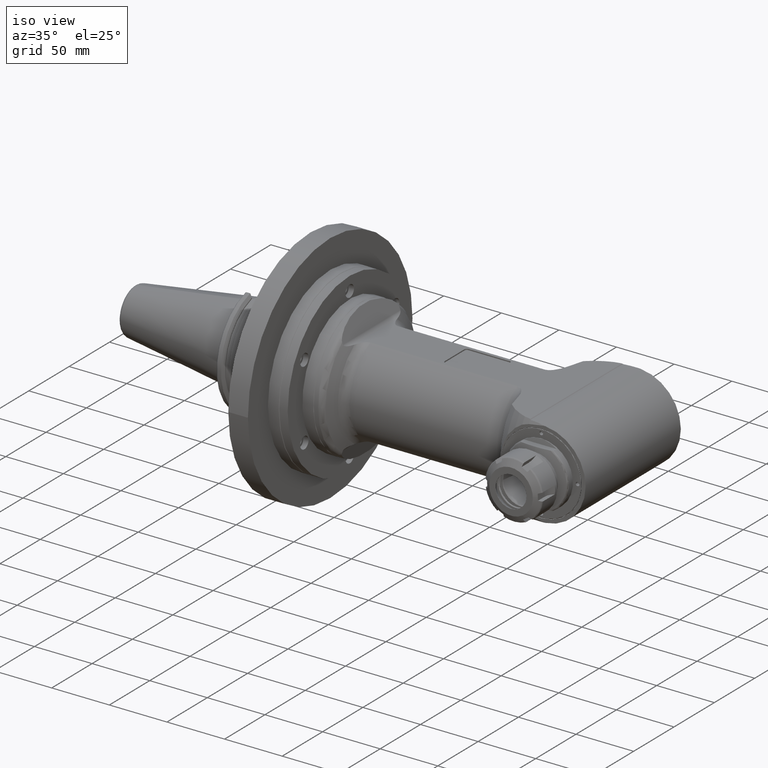
[diagram: clean part render]
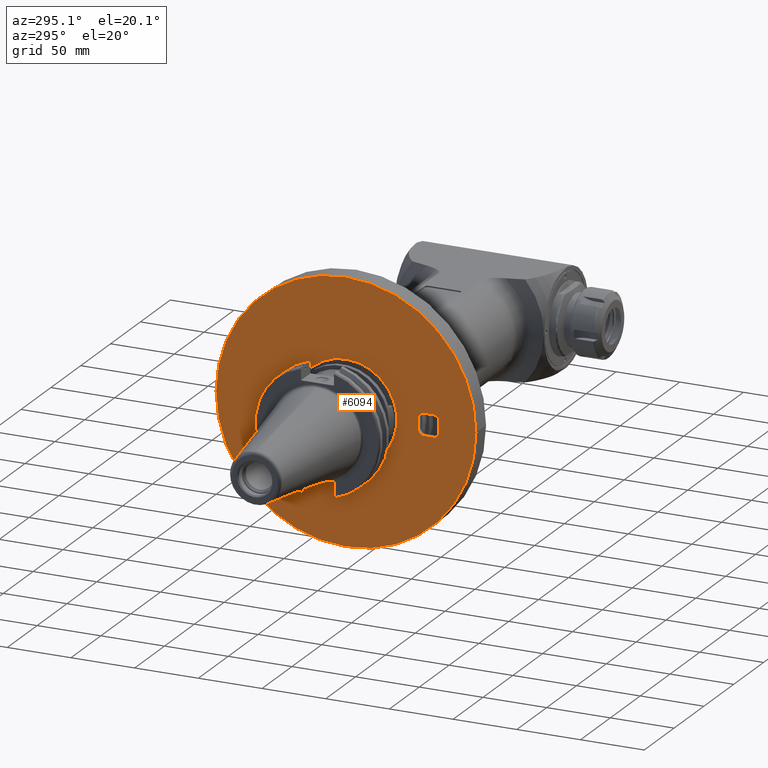
[diagram: tour spotlight — one face highlighted and labeled with its STEP entity id]
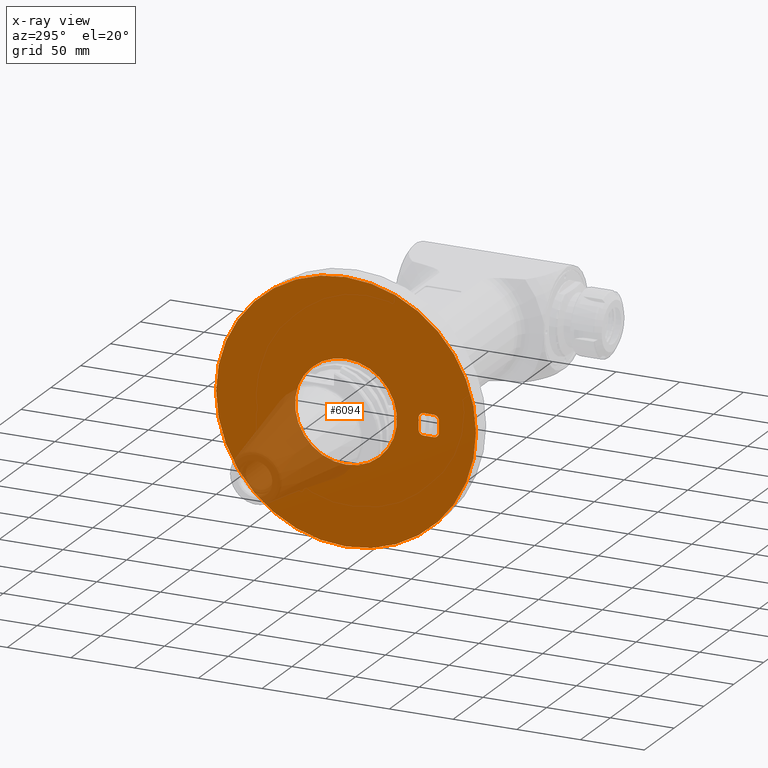
[diagram: x-ray of the same camera — body ghosted, this tour face saturated]
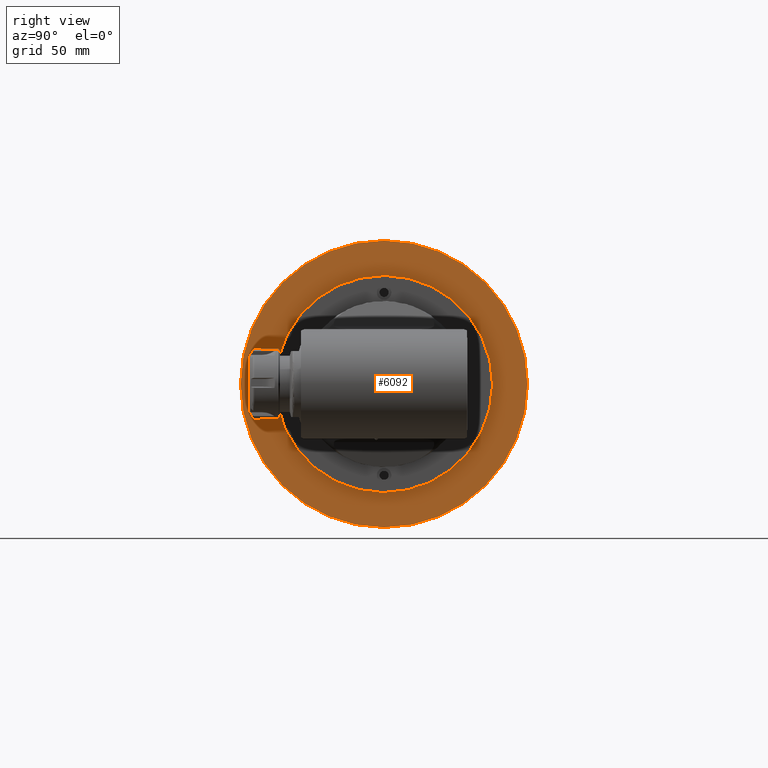
[diagram: tour spotlight — one face highlighted and labeled with its STEP entity id]
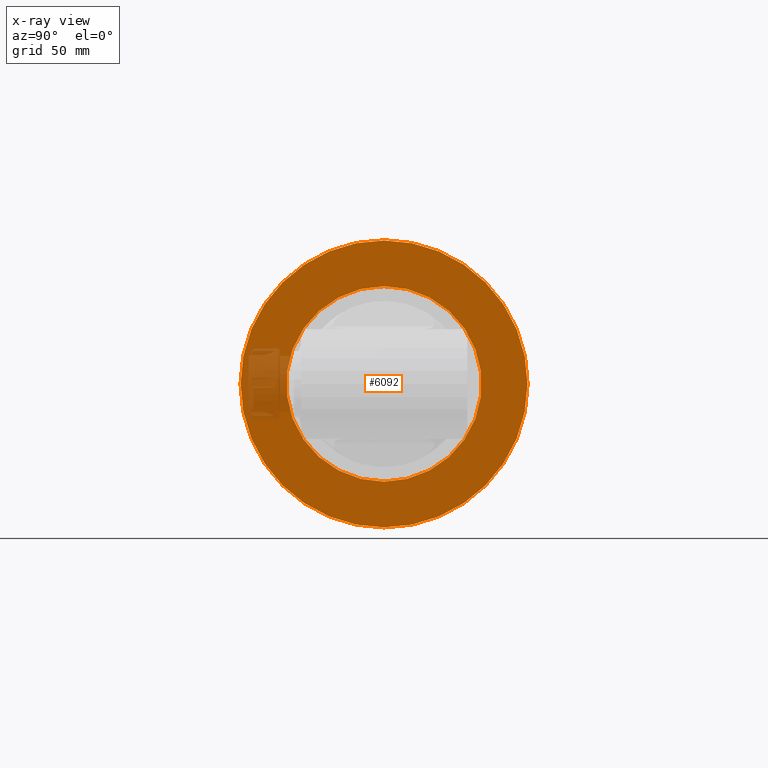
[diagram: x-ray of the same camera — body ghosted, this tour face saturated]
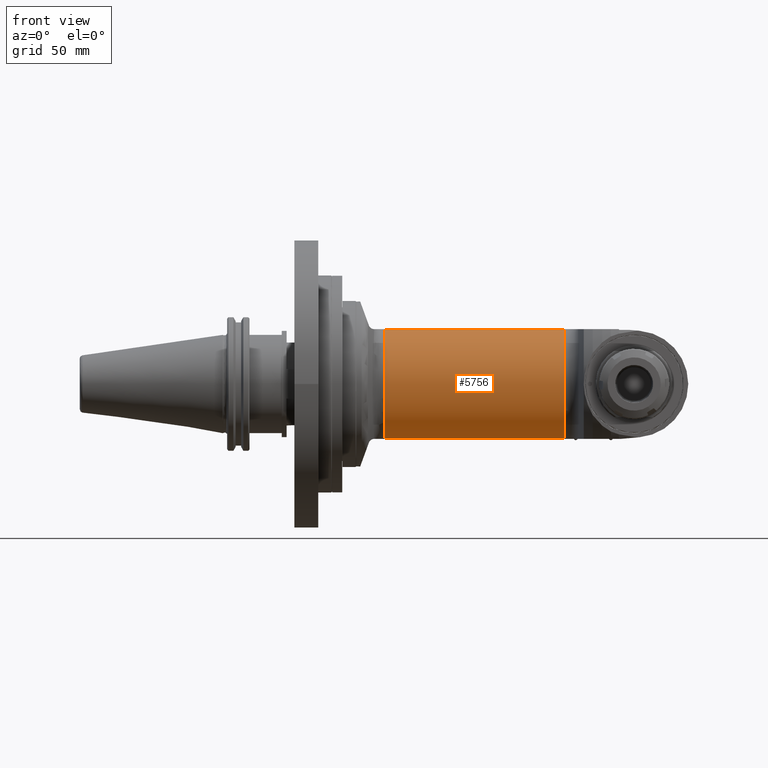
[diagram: tour spotlight — one face highlighted and labeled with its STEP entity id]
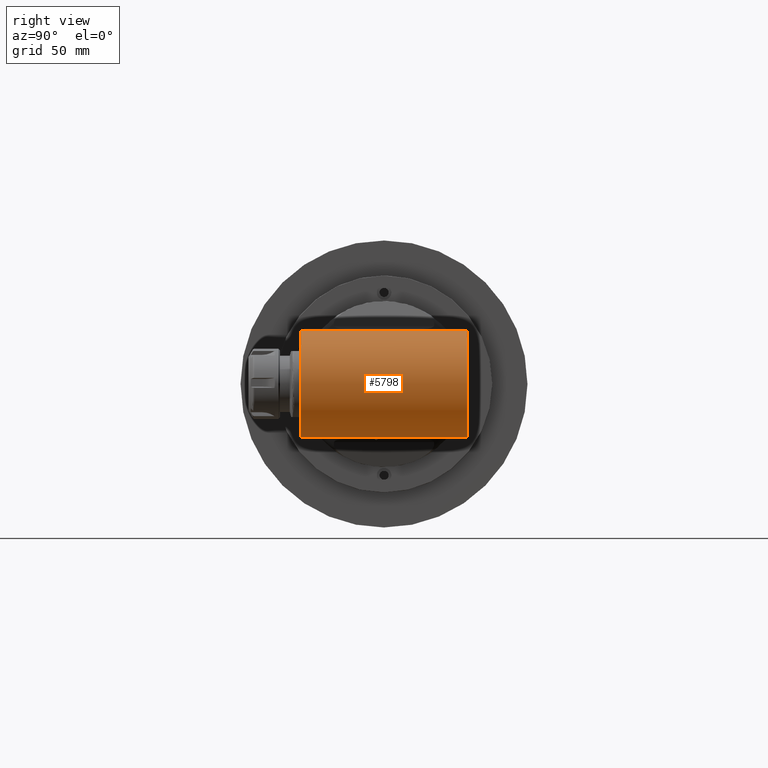
[diagram: tour spotlight — one face highlighted and labeled with its STEP entity id]
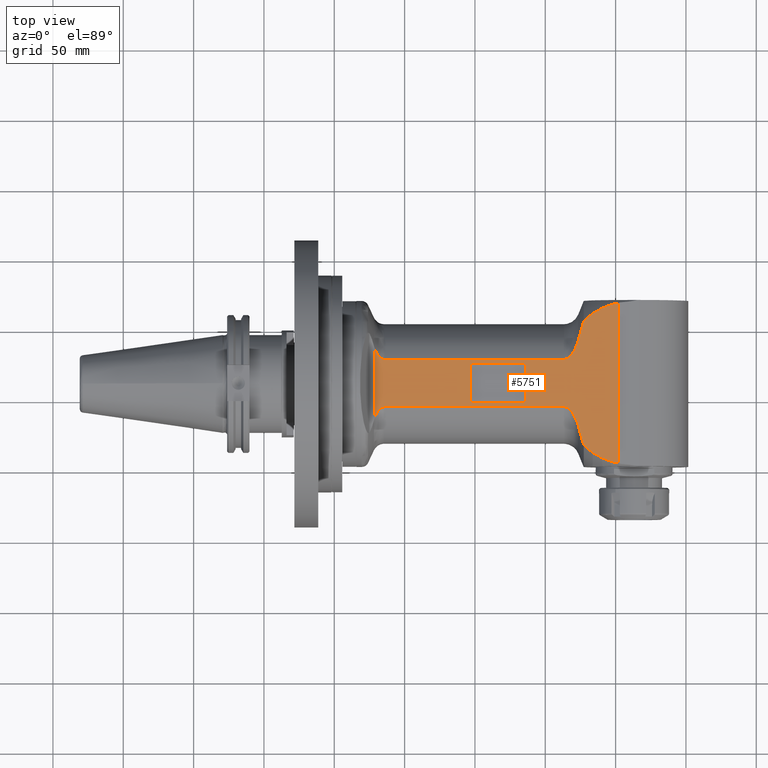
[diagram: tour spotlight — one face highlighted and labeled with its STEP entity id]
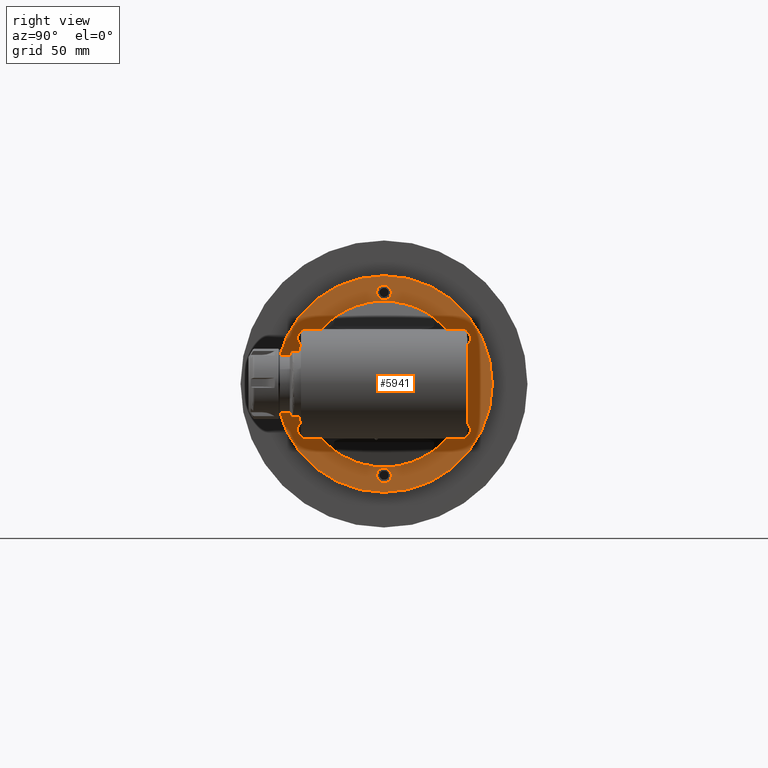
[diagram: tour spotlight — one face highlighted and labeled with its STEP entity id]
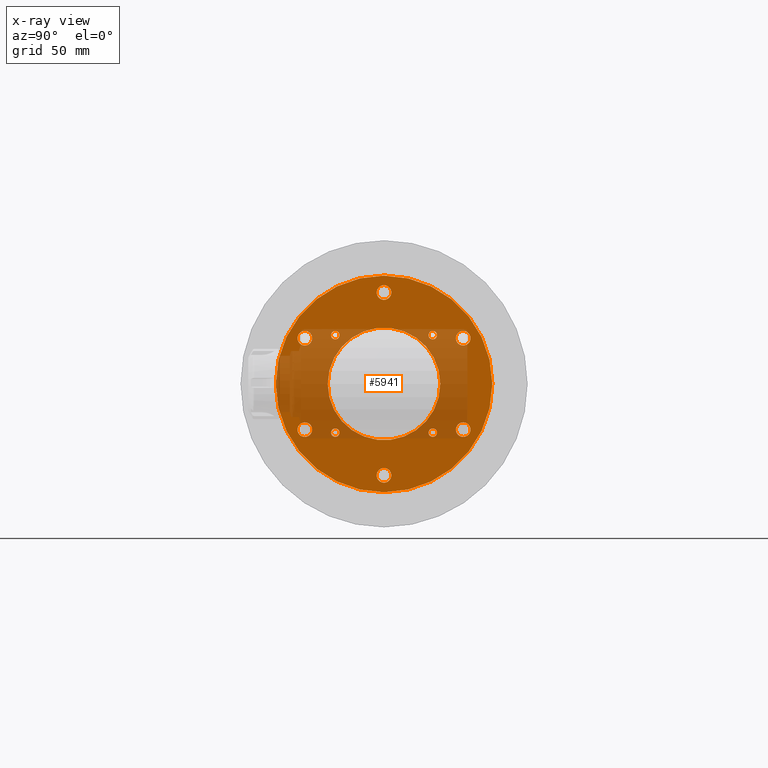
[diagram: x-ray of the same camera — body ghosted, this tour face saturated]
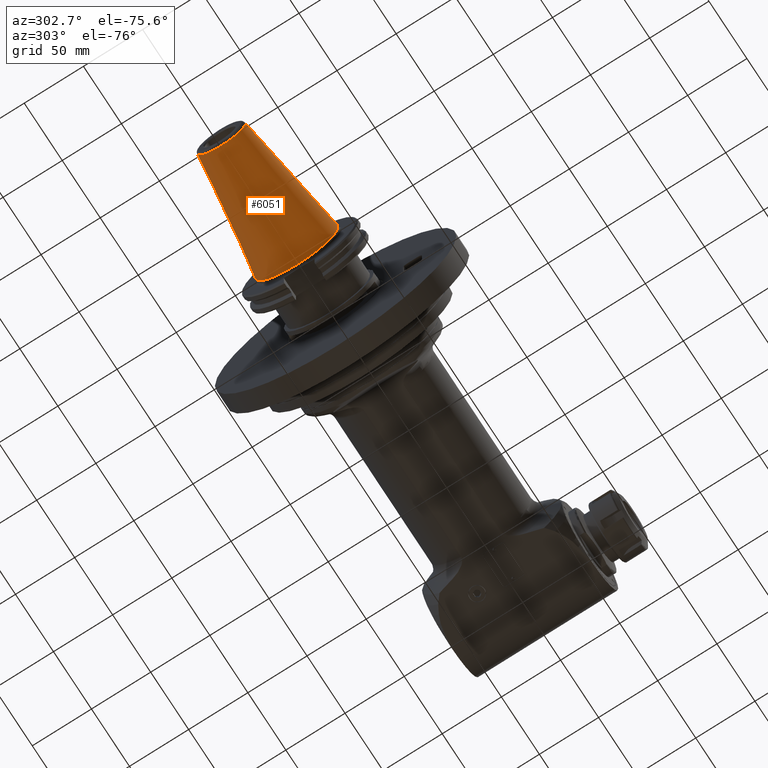
[diagram: tour spotlight — one face highlighted and labeled with its STEP entity id]
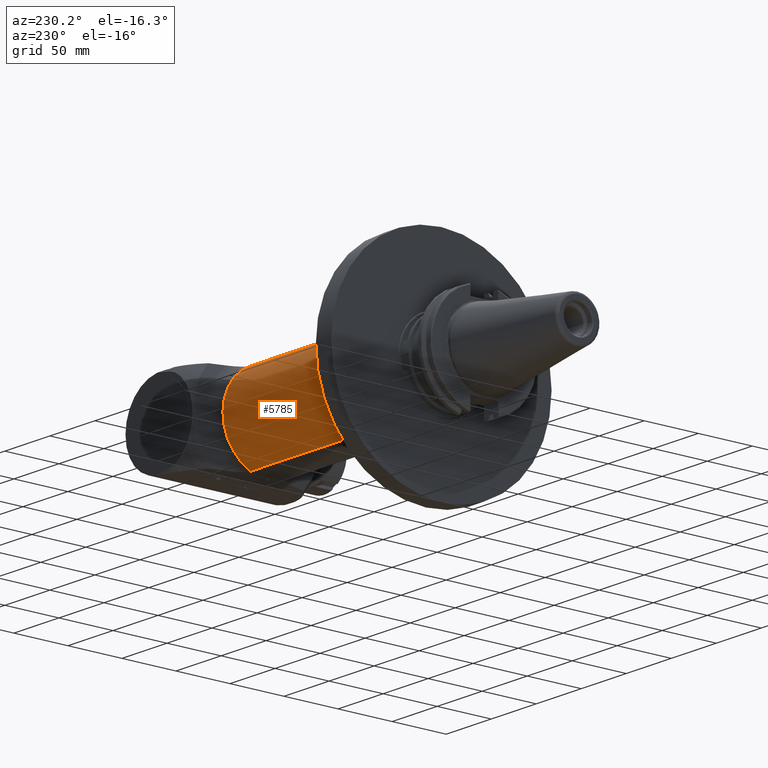
[diagram: tour spotlight — one face highlighted and labeled with its STEP entity id]
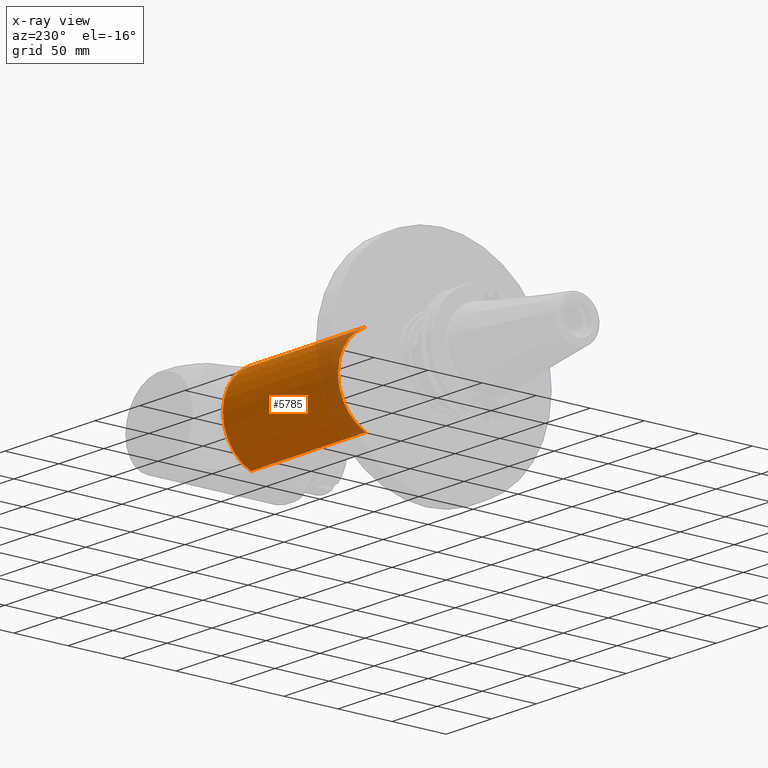
[diagram: x-ray of the same camera — body ghosted, this tour face saturated]
A machine part: a face-by-face anatomy tour. The part has 368 B-rep faces; the first image is the clean iso view, then the 8 largest visible faces are spotlighted one at a time (largest first), each with its STEP entity span.

Face 1 — auxiliary view, entity #6094. An x-ray twin of the same camera follows (body ghosted, this face saturated) — the face is partly hidden behind the body. In plain terms, the highlighted planar face has unit normal (-1, 0, 0).
Definition (entity closure, byte-faithful):
#249=FACE_BOUND('',#1273,.T.);
#250=FACE_BOUND('',#1274,.T.);
#827=FACE_OUTER_BOUND('',#1272,.T.);
#1272=EDGE_LOOP('',(#5478));
#1273=EDGE_LOOP('',(#5479,#5480,#5481,#5482,#5483,#5484,#5485,#5486));
#1274=EDGE_LOOP('',(#5487));
#1648=CIRCLE('',#6889,102.);
#1649=CIRCLE('',#6891,4.);
#1650=CIRCLE('',#6892,4.);
#1651=CIRCLE('',#6893,4.);
#1652=CIRCLE('',#6894,4.);
#1653=CIRCLE('',#6895,40.);
#1994=LINE('',#11192,#2339);
#1995=LINE('',#11196,#2340);
#1996=LINE('',#11200,#2341);
#1997=LINE('',#11204,#2342);
#2339=VECTOR('',#8668,8.);
#2340=VECTOR('',#8671,9.);
#2341=VECTOR('',#8674,8.);
#2342=VECTOR('',#8677,9.);
#2912=VERTEX_POINT('',#11186);
#2913=VERTEX_POINT('',#11190);
#2914=VERTEX_POINT('',#11191);
#2915=VERTEX_POINT('',#11193);
#2916=VERTEX_POINT('',#11195);
#2917=VERTEX_POINT('',#11197);
#2918=VERTEX_POINT('',#11199);
#2919=VERTEX_POINT('',#11201);
#2920=VERTEX_POINT('',#11203);
#2921=VERTEX_POINT('',#11206);
#3772=EDGE_CURVE('',#2912,#2912,#1648,.T.);
#3774=EDGE_CURVE('',#2913,#2914,#1994,.T.);
#3775=EDGE_CURVE('',#2913,#2915,#1649,.T.);
#3776=EDGE_CURVE('',#2916,#2915,#1995,.T.);
#3777=EDGE_CURVE('',#2916,#2917,#1650,.T.);
#3778=EDGE_CURVE('',#2918,#2917,#1996,.T.);
#3779=EDGE_CURVE('',#2918,#2919,#1651,.T.);
#3780=EDGE_CURVE('',#2920,#2919,#1997,.T.);
#3781=EDGE_CURVE('',#2920,#2914,#1652,.T.);
#3782=EDGE_CURVE('',#2921,#2921,#1653,.T.);
#5478=ORIENTED_EDGE('',*,*,#3772,.F.);
#5479=ORIENTED_EDGE('',*,*,#3774,.F.);
#5480=ORIENTED_EDGE('',*,*,#3775,.T.);
#5481=ORIENTED_EDGE('',*,*,#3776,.F.);
#5482=ORIENTED_EDGE('',*,*,#3777,.T.);
#5483=ORIENTED_EDGE('',*,*,#3778,.F.);
#5484=ORIENTED_EDGE('',*,*,#3779,.T.);
#5485=ORIENTED_EDGE('',*,*,#3780,.F.);
#5486=ORIENTED_EDGE('',*,*,#3781,.T.);
#5487=ORIENTED_EDGE('',*,*,#3782,.T.);
#5735=PLANE('',#6890);
#6094=ADVANCED_FACE('',(#827,#249,#250),#5735,.T.);
#6889=AXIS2_PLACEMENT_3D('',#11187,#8663,#8664);
#6890=AXIS2_PLACEMENT_3D('',#11189,#8666,#8667);
#6891=AXIS2_PLACEMENT_3D('',#11194,#8669,#8670);
#6892=AXIS2_PLACEMENT_3D('',#11198,#8672,#8673);
#6893=AXIS2_PLACEMENT_3D('',#11202,#8675,#8676);
#6894=AXIS2_PLACEMENT_3D('',#11205,#8678,#8679);
#6895=AXIS2_PLACEMENT_3D('',#11207,#8680,#8681);
#8663=DIRECTION('center_axis',(1.,0.,0.));
#8664=DIRECTION('ref_axis',(0.,1.,0.));
#8666=DIRECTION('center_axis',(-1.,0.,0.));
#8667=DIRECTION('ref_axis',(0.,0.,1.));
#8668=DIRECTION('',(0.,1.,0.));
#8669=DIRECTION('center_axis',(1.,0.,0.));
#8670=DIRECTION('ref_axis',(0.,0.,1.));
#8671=DIRECTION('',(0.,0.,1.));
#8672=DIRECTION('center_axis',(1.,0.,0.));
#8673=DIRECTION('ref_axis',(0.,-1.,0.));
#8674=DIRECTION('',(0.,-1.,0.));
#8675=DIRECTION('center_axis',(1.,0.,0.));
#8676=DIRECTION('ref_axis',(0.,0.,-1.));
#8677=DIRECTION('',(0.,0.,-1.));
#8678=DIRECTION('center_axis',(1.,0.,0.));
#8679=DIRECTION('ref_axis',(0.,1.,0.));
#8680=DIRECTION('center_axis',(1.,0.,0.));
#8681=DIRECTION('ref_axis',(0.,0.,1.));
#11186=CARTESIAN_POINT('',(14.,-102.,-1.50990331349E-14));
#11187=CARTESIAN_POINT('Origin',(14.,0.,0.));
#11189=CARTESIAN_POINT('Origin',(14.,43.625,0.));
#11190=CARTESIAN_POINT('',(14.,-69.,8.5));
#11191=CARTESIAN_POINT('',(14.,-61.,8.5));
#11192=CARTESIAN_POINT('',(14.,-69.,8.5));
#11193=CARTESIAN_POINT('',(14.,-73.,4.5));
#11194=CARTESIAN_POINT('Origin',(14.,-69.,4.5));
#11195=CARTESIAN_POINT('',(14.,-73.,-4.5));
#11196=CARTESIAN_POINT('',(14.,-73.,-4.5));
#11197=CARTESIAN_POINT('',(14.,-69.,-8.5));
#11198=CARTESIAN_POINT('Origin',(14.,-69.,-4.5));
#11199=CARTESIAN_POINT('',(14.,-61.,-8.5));
#11200=CARTESIAN_POINT('',(14.,-61.,-8.5));
#11201=CARTESIAN_POINT('',(14.,-57.,-4.5));
#11202=CARTESIAN_POINT('Origin',(14.,-61.,-4.5));
#11203=CARTESIAN_POINT('',(14.,-57.,4.5));
#11204=CARTESIAN_POINT('',(14.,-57.,4.5));
#11205=CARTESIAN_POINT('Origin',(14.,-61.,4.5));
#11206=CARTESIAN_POINT('',(14.,0.,-40.));
#11207=CARTESIAN_POINT('Origin',(14.,0.,0.));

Face 2 — right view, entity #6092. An x-ray twin of the same camera follows (body ghosted, this face saturated) — the face is partly hidden behind the body. In plain terms, the highlighted planar face has unit normal (-1, 0, 0).
Definition (entity closure, byte-faithful):
#248=FACE_BOUND('',#1270,.T.);
#825=FACE_OUTER_BOUND('',#1269,.T.);
#1269=EDGE_LOOP('',(#5472));
#1270=EDGE_LOOP('',(#5473));
#1646=CIRCLE('',#6886,102.);
#1647=CIRCLE('',#6887,69.5);
#2910=VERTEX_POINT('',#11181);
#2911=VERTEX_POINT('',#11183);
#3770=EDGE_CURVE('',#2910,#2910,#1646,.T.);
#3771=EDGE_CURVE('',#2911,#2911,#1647,.T.);
#5472=ORIENTED_EDGE('',*,*,#3770,.T.);
#5473=ORIENTED_EDGE('',*,*,#3771,.T.);
#5734=PLANE('',#6885);
#6092=ADVANCED_FACE('',(#825,#248),#5734,.F.);
#6885=AXIS2_PLACEMENT_3D('',#11180,#8655,#8656);
#6886=AXIS2_PLACEMENT_3D('',#11182,#8657,#8658);
#6887=AXIS2_PLACEMENT_3D('',#11184,#8659,#8660);
#8655=DIRECTION('center_axis',(-1.,0.,0.));
#8656=DIRECTION('ref_axis',(0.,0.,1.));
#8657=DIRECTION('center_axis',(1.,0.,0.));
#8658=DIRECTION('ref_axis',(0.,1.,0.));
#8659=DIRECTION('center_axis',(-1.,0.,0.));
#8660=DIRECTION('ref_axis',(0.,0.,-1.));
#11180=CARTESIAN_POINT('Origin',(31.,43.625,0.));
#11181=CARTESIAN_POINT('',(31.,-102.,-1.50990331349E-14));
#11182=CARTESIAN_POINT('Origin',(31.,0.,0.));
#11183=CARTESIAN_POINT('',(31.,-8.51129525407411E-15,-69.5));
#11184=CARTESIAN_POINT('Origin',(31.,0.,0.));

Face 3 — front view, entity #5756. In plain terms, the highlighted cylindrical surface (partial cylindrical patch) has radius 42.5 mm, axis along (-1, 0, 0).
Definition (entity closure, byte-faithful):
#67=CYLINDRICAL_SURFACE('',#6215,42.5);
#489=FACE_OUTER_BOUND('',#858,.T.);
#858=EDGE_LOOP('',(#3900,#3901,#3902,#3903));
#1329=CIRCLE('',#6214,42.5);
#1330=CIRCLE('',#6216,42.5);
#1681=LINE('',#8866,#2026);
#1688=LINE('',#9101,#2033);
#2026=VECTOR('',#6973,127.7897678687);
#2033=VECTOR('',#7012,127.7897678687);
#2381=VERTEX_POINT('',#8852);
#2382=VERTEX_POINT('',#8865);
#2414=VERTEX_POINT('',#9085);
#2415=VERTEX_POINT('',#9100);
#2967=EDGE_CURVE('',#2382,#2381,#1681,.T.);
#3005=EDGE_CURVE('',#2414,#2381,#1329,.T.);
#3006=EDGE_CURVE('',#2414,#2415,#1688,.T.);
#3007=EDGE_CURVE('',#2382,#2415,#1330,.T.);
#3900=ORIENTED_EDGE('',*,*,#3006,.T.);
#3901=ORIENTED_EDGE('',*,*,#3007,.F.);
#3902=ORIENTED_EDGE('',*,*,#2967,.T.);
#3903=ORIENTED_EDGE('',*,*,#3005,.F.);
#5756=ADVANCED_FACE('',(#489),#67,.T.);
#6214=AXIS2_PLACEMENT_3D('',#9098,#7008,#7009);
#6215=AXIS2_PLACEMENT_3D('',#9099,#7010,#7011);
#6216=AXIS2_PLACEMENT_3D('',#9102,#7013,#7014);
#6973=DIRECTION('',(-1.,0.,0.));
#7008=DIRECTION('center_axis',(-1.,0.,0.));
#7009=DIRECTION('ref_axis',(0.,-0.397396370683616,-0.917647058823538));
#7010=DIRECTION('center_axis',(-1.,0.,0.));
#7011=DIRECTION('ref_axis',(0.,-1.,3.21624529935327E-16));
#7012=DIRECTION('',(1.,0.,0.));
#7013=DIRECTION('center_axis',(1.,0.,0.));
#7014=DIRECTION('ref_axis',(0.,-1.,0.));
#8852=CARTESIAN_POINT('',(-177.709361554,-16.88934575405,39.));
#8865=CARTESIAN_POINT('',(-49.91959368527,-16.88934575405,39.));
#8866=CARTESIAN_POINT('',(-49.91959368527,-16.88934575405,39.));
#9085=CARTESIAN_POINT('',(-177.709361554,-16.88934575405,-39.));
#9098=CARTESIAN_POINT('Origin',(-177.709361554,0.,0.));
#9099=CARTESIAN_POINT('Origin',(-67.,0.,0.));
#9100=CARTESIAN_POINT('',(-49.91959368527,-16.88934575405,-39.));
#9101=CARTESIAN_POINT('',(-177.709361554,-16.88934575405,-39.));
#9102=CARTESIAN_POINT('Origin',(-49.91959368527,0.,0.));

Face 4 — right view, entity #5798. In plain terms, the highlighted cylindrical surface (partial cylindrical patch) has radius 38 mm, axis along (0, 1, 0).
Definition (entity closure, byte-faithful):
#76=CYLINDRICAL_SURFACE('',#6308,38.);
#531=FACE_OUTER_BOUND('',#907,.T.);
#907=EDGE_LOOP('',(#4128,#4129,#4130,#4131));
#1373=CIRCLE('',#6293,38.);
#1380=CIRCLE('',#6309,38.);
#1678=LINE('',#8826,#2023);
#1719=LINE('',#9463,#2064);
#2023=VECTOR('',#6960,118.);
#2064=VECTOR('',#7227,118.);
#2373=VERTEX_POINT('',#8823);
#2374=VERTEX_POINT('',#8825);
#2481=VERTEX_POINT('',#9418);
#2488=VERTEX_POINT('',#9462);
#2957=EDGE_CURVE('',#2374,#2373,#1678,.T.);
#3101=EDGE_CURVE('',#2374,#2481,#1373,.T.);
#3116=EDGE_CURVE('',#2488,#2481,#1719,.T.);
#3119=EDGE_CURVE('',#2373,#2488,#1380,.T.);
#4128=ORIENTED_EDGE('',*,*,#2957,.T.);
#4129=ORIENTED_EDGE('',*,*,#3119,.T.);
#4130=ORIENTED_EDGE('',*,*,#3116,.T.);
#4131=ORIENTED_EDGE('',*,*,#3101,.F.);
#5798=ADVANCED_FACE('',(#531),#76,.T.);
#6293=AXIS2_PLACEMENT_3D('',#9419,#7196,#7197);
#6308=AXIS2_PLACEMENT_3D('',#9469,#7229,#7230);
#6309=AXIS2_PLACEMENT_3D('',#9470,#7231,#7232);
#6960=DIRECTION('',(0.,-1.,0.));
#7196=DIRECTION('center_axis',(0.,1.,0.));
#7197=DIRECTION('ref_axis',(0.0871557427475461,0.,0.996194698091755));
#7227=DIRECTION('',(0.,1.,0.));
#7229=DIRECTION('center_axis',(0.,1.,0.));
#7230=DIRECTION('ref_axis',(1.,0.,1.22464679914735E-16));
#7231=DIRECTION('center_axis',(0.,1.,0.));
#7232=DIRECTION('ref_axis',(0.0871557427475461,0.,0.996194698091755));
#8823=CARTESIAN_POINT('',(3.81191822441,-59.,37.85539852749));
#8825=CARTESIAN_POINT('',(3.81191822441,59.,37.85539852749));
#8826=CARTESIAN_POINT('',(3.81191822441,59.,37.85539852749));
#9418=CARTESIAN_POINT('',(3.81191822441,59.,-37.85539852749));
#9419=CARTESIAN_POINT('Origin',(0.5,59.,0.));
#9462=CARTESIAN_POINT('',(3.81191822441,-59.,-37.85539852749));
#9463=CARTESIAN_POINT('',(3.81191822441,-59.,-37.85539852749));
#9469=CARTESIAN_POINT('Origin',(0.5,-70.8000024,0.));
#9470=CARTESIAN_POINT('Origin',(0.5,-59.,0.));

Face 5 — top view, entity #5751. In plain terms, the highlighted planar face has unit normal (-0, 0, -1).
Definition (entity closure, byte-faithful):
#172=FACE_BOUND('',#853,.T.);
#327=(
BOUNDED_CURVE()
B_SPLINE_CURVE(2,(#8845,#8846,#8847),.UNSPECIFIED.,.F.,.F.)
B_SPLINE_CURVE_WITH_KNOTS((3,3),(-0.258199240240216,-0.0435592406300408),
 .UNSPECIFIED.)
CURVE()
GEOMETRIC_REPRESENTATION_ITEM()
RATIONAL_B_SPLINE_CURVE((1.01099371026194,1.00645712863115,1.00186579429145))
REPRESENTATION_ITEM('')
);
#328=(
BOUNDED_CURVE()
B_SPLINE_CURVE(2,(#8885,#8886,#8887),.UNSPECIFIED.,.F.,.F.)
B_SPLINE_CURVE_WITH_KNOTS((3,3),(4.52334173128765,6.36262635387725),
 .UNSPECIFIED.)
CURVE()
GEOMETRIC_REPRESENTATION_ITEM()
RATIONAL_B_SPLINE_CURVE((1.65245227205287,1.75473892938806,1.83233259822002))
REPRESENTATION_ITEM('')
);
#329=(
BOUNDED_CURVE()
B_SPLINE_CURVE(2,(#8889,#8890,#8891),.UNSPECIFIED.,.F.,.F.)
B_SPLINE_CURVE_WITH_KNOTS((3,3),(1.19258144572329,1.70434645855754),
 .UNSPECIFIED.)
CURVE()
GEOMETRIC_REPRESENTATION_ITEM()
RATIONAL_B_SPLINE_CURVE((1.11904514146271,1.14269499670088,1.16472045288357))
REPRESENTATION_ITEM('')
);
#330=(
BOUNDED_CURVE()
B_SPLINE_CURVE(2,(#8893,#8894,#8895),.UNSPECIFIED.,.F.,.F.)
B_SPLINE_CURVE_WITH_KNOTS((3,3),(0.63059718713052,1.01499441382721),
 .UNSPECIFIED.)
CURVE()
GEOMETRIC_REPRESENTATION_ITEM()
RATIONAL_B_SPLINE_CURVE((1.05382653180411,1.06966795019405,1.08482142972976))
REPRESENTATION_ITEM('')
);
#331=(
BOUNDED_CURVE()
B_SPLINE_CURVE(2,(#8897,#8898,#8899),.UNSPECIFIED.,.F.,.F.)
B_SPLINE_CURVE_WITH_KNOTS((3,3),(0.28253037946221,0.566196133802406),
 .UNSPECIFIED.)
CURVE()
GEOMETRIC_REPRESENTATION_ITEM()
RATIONAL_B_SPLINE_CURVE((1.01985578725328,1.02969639383012,1.03928161176508))
REPRESENTATION_ITEM('')
);
#332=(
BOUNDED_CURVE()
B_SPLINE_CURVE(2,(#8900,#8901,#8902),.UNSPECIFIED.,.F.,.F.)
B_SPLINE_CURVE_WITH_KNOTS((3,3),(0.0435592406297658,0.258199240239935),
 .UNSPECIFIED.)
CURVE()
GEOMETRIC_REPRESENTATION_ITEM()
RATIONAL_B_SPLINE_CURVE((1.00186579429144,1.00645712863114,1.01099371026193))
REPRESENTATION_ITEM('')
);
#333=(
BOUNDED_CURVE()
B_SPLINE_CURVE(2,(#8904,#8905,#8906),.UNSPECIFIED.,.F.,.F.)
B_SPLINE_CURVE_WITH_KNOTS((3,3),(21.8579215953965,22.1415747401255),
 .UNSPECIFIED.)
CURVE()
GEOMETRIC_REPRESENTATION_ITEM()
RATIONAL_B_SPLINE_CURVE((1.03925749298676,1.02967249770123,1.01983211971193))
REPRESENTATION_ITEM('')
);
#334=(
BOUNDED_CURVE()
B_SPLINE_CURVE(2,(#8908,#8909,#8910),.UNSPECIFIED.,.F.,.F.)
B_SPLINE_CURVE_WITH_KNOTS((3,3),(17.9481893848663,18.3325659471558),
 .UNSPECIFIED.)
CURVE()
GEOMETRIC_REPRESENTATION_ITEM()
RATIONAL_B_SPLINE_CURVE((1.08478740898246,1.06963440453131,1.05379348278755))
REPRESENTATION_ITEM('')
);
#335=(
BOUNDED_CURVE()
B_SPLINE_CURVE(2,(#8912,#8913,#8914),.UNSPECIFIED.,.F.,.F.)
B_SPLINE_CURVE_WITH_KNOTS((3,3),(15.5811505124909,16.0928831327769),
 .UNSPECIFIED.)
CURVE()
GEOMETRIC_REPRESENTATION_ITEM()
RATIONAL_B_SPLINE_CURVE((1.16467075614164,1.14264623994714,1.11899739403981))
REPRESENTATION_ITEM('')
);
#336=(
BOUNDED_CURVE()
B_SPLINE_CURVE(2,(#8916,#8917,#8918),.UNSPECIFIED.,.F.,.F.)
B_SPLINE_CURVE_WITH_KNOTS((3,3),(17.9190428891443,19.7581004738918),
 .UNSPECIFIED.)
CURVE()
GEOMETRIC_REPRESENTATION_ITEM()
RATIONAL_B_SPLINE_CURVE((1.83211432489703,1.75452989905454,1.65225542608023))
REPRESENTATION_ITEM('')
);
#433=B_SPLINE_CURVE_WITH_KNOTS('',3,(#8853,#8854,#8855,#8856,#8857,#8858,
#8859,#8860,#8861,#8862,#8863,#8864),.UNSPECIFIED.,.F.,.F.,(4,2,2,2,2,4),
(-3.19539997434443,-3.09159271726834,-2.96658047424726,-2.57690997577764,
-2.30235248652145,-2.07011355459297),.UNSPECIFIED.);
#434=B_SPLINE_CURVE_WITH_KNOTS('',3,(#8868,#8869,#8870,#8871,#8872,#8873,
#8874,#8875,#8876,#8877,#8878,#8879,#8880,#8881,#8882,#8883),
 .UNSPECIFIED.,.F.,.F.,(4,2,2,2,2,2,2,4),(4.20455674250215,4.34860436740711,
4.52309530297573,4.79155120042495,5.06000709787417,5.41995109479012,5.77989509170607,
5.8845077730285),.UNSPECIFIED.);
#435=B_SPLINE_CURVE_WITH_KNOTS('',3,(#8920,#8921,#8922,#8923,#8924,#8925,
#8926,#8927,#8928,#8929,#8930,#8931,#8932,#8933,#8934,#8935),
 .UNSPECIFIED.,.F.,.F.,(4,2,2,2,2,2,2,4),(2.52460571195915,2.62921839329822,
2.98916239021418,3.34910638713013,3.61756228457935,3.88601818202857,4.06050911759719,
4.20455674250215),.UNSPECIFIED.);
#436=B_SPLINE_CURVE_WITH_KNOTS('',3,(#8938,#8939,#8940,#8941,#8942,#8943,
#8944,#8945,#8946,#8947,#8948,#8949),.UNSPECIFIED.,.F.,.F.,(4,2,2,2,2,4),
(3.19539997434443,3.29920723142052,3.4242194744416,3.81388997291122,4.08844746216741,
4.32068480259709),.UNSPECIFIED.);
#484=FACE_OUTER_BOUND('',#852,.T.);
#852=EDGE_LOOP('',(#3850,#3851,#3852,#3853,#3854,#3855,#3856,#3857,#3858,
#3859,#3860,#3861,#3862,#3863,#3864,#3865,#3866,#3867));
#853=EDGE_LOOP('',(#3868,#3869,#3870,#3871,#3872,#3873,#3874,#3875));
#1320=CIRCLE('',#6200,2.);
#1321=CIRCLE('',#6201,2.);
#1322=CIRCLE('',#6202,2.);
#1323=CIRCLE('',#6203,2.);
#1675=LINE('',#8798,#2020);
#1680=LINE('',#8851,#2025);
#1681=LINE('',#8866,#2026);
#1682=LINE('',#8937,#2027);
#1683=LINE('',#8954,#2028);
#1684=LINE('',#8958,#2029);
#1685=LINE('',#8962,#2030);
#1686=LINE('',#8965,#2031);
#2020=VECTOR('',#6949,10.);
#2025=VECTOR('',#6972,51.5068622198801);
#2026=VECTOR('',#6973,127.7897678687);
#2027=VECTOR('',#6974,127.7897678687);
#2028=VECTOR('',#6977,24.5);
#2029=VECTOR('',#6980,35.5);
#2030=VECTOR('',#6983,24.5);
#2031=VECTOR('',#6986,35.5);
#2367=VERTEX_POINT('',#8795);
#2368=VERTEX_POINT('',#8797);
#2378=VERTEX_POINT('',#8843);
#2379=VERTEX_POINT('',#8849);
#2380=VERTEX_POINT('',#8850);
#2381=VERTEX_POINT('',#8852);
#2382=VERTEX_POINT('',#8865);
#2383=VERTEX_POINT('',#8867);
#2384=VERTEX_POINT('',#8884);
#2385=VERTEX_POINT('',#8888);
#2386=VERTEX_POINT('',#8892);
#2387=VERTEX_POINT('',#8896);
#2388=VERTEX_POINT('',#8903);
#2389=VERTEX_POINT('',#8907);
#2390=VERTEX_POINT('',#8911);
#2391=VERTEX_POINT('',#8915);
#2392=VERTEX_POINT('',#8919);
#2393=VERTEX_POINT('',#8936);
#2394=VERTEX_POINT('',#8950);
#2395=VERTEX_POINT('',#8951);
#2396=VERTEX_POINT('',#8953);
#2397=VERTEX_POINT('',#8955);
#2398=VERTEX_POINT('',#8957);
#2399=VERTEX_POINT('',#8959);
#2400=VERTEX_POINT('',#8961);
#2401=VERTEX_POINT('',#8963);
#2949=EDGE_CURVE('',#2368,#2367,#1675,.T.);
#2964=EDGE_CURVE('',#2378,#2367,#327,.T.);
#2965=EDGE_CURVE('',#2379,#2380,#1680,.T.);
#2966=EDGE_CURVE('',#2381,#2379,#433,.T.);
#2967=EDGE_CURVE('',#2382,#2381,#1681,.T.);
#2968=EDGE_CURVE('',#2382,#2383,#434,.T.);
#2969=EDGE_CURVE('',#2384,#2383,#328,.T.);
#2970=EDGE_CURVE('',#2385,#2384,#329,.T.);
#2971=EDGE_CURVE('',#2386,#2385,#330,.T.);
#2972=EDGE_CURVE('',#2387,#2386,#331,.T.);
#2973=EDGE_CURVE('',#2368,#2387,#332,.T.);
#2974=EDGE_CURVE('',#2388,#2378,#333,.T.);
#2975=EDGE_CURVE('',#2389,#2388,#334,.T.);
#2976=EDGE_CURVE('',#2390,#2389,#335,.T.);
#2977=EDGE_CURVE('',#2391,#2390,#336,.T.);
#2978=EDGE_CURVE('',#2391,#2392,#435,.T.);
#2979=EDGE_CURVE('',#2393,#2392,#1682,.T.);
#2980=EDGE_CURVE('',#2393,#2380,#436,.T.);
#2981=EDGE_CURVE('',#2394,#2395,#1320,.T.);
#2982=EDGE_CURVE('',#2395,#2396,#1683,.T.);
#2983=EDGE_CURVE('',#2396,#2397,#1321,.T.);
#2984=EDGE_CURVE('',#2397,#2398,#1684,.T.);
#2985=EDGE_CURVE('',#2398,#2399,#1322,.T.);
#2986=EDGE_CURVE('',#2399,#2400,#1685,.T.);
#2987=EDGE_CURVE('',#2400,#2401,#1323,.T.);
#2988=EDGE_CURVE('',#2401,#2394,#1686,.T.);
#3850=ORIENTED_EDGE('',*,*,#2965,.F.);
#3851=ORIENTED_EDGE('',*,*,#2966,.F.);
#3852=ORIENTED_EDGE('',*,*,#2967,.F.);
#3853=ORIENTED_EDGE('',*,*,#2968,.T.);
#3854=ORIENTED_EDGE('',*,*,#2969,.F.);
#3855=ORIENTED_EDGE('',*,*,#2970,.F.);
#3856=ORIENTED_EDGE('',*,*,#2971,.F.);
#3857=ORIENTED_EDGE('',*,*,#2972,.F.);
#3858=ORIENTED_EDGE('',*,*,#2973,.F.);
#3859=ORIENTED_EDGE('',*,*,#2949,.T.);
#3860=ORIENTED_EDGE('',*,*,#2964,.F.);
#3861=ORIENTED_EDGE('',*,*,#2974,.F.);
#3862=ORIENTED_EDGE('',*,*,#2975,.F.);
#3863=ORIENTED_EDGE('',*,*,#2976,.F.);
#3864=ORIENTED_EDGE('',*,*,#2977,.F.);
#3865=ORIENTED_EDGE('',*,*,#2978,.T.);
#3866=ORIENTED_EDGE('',*,*,#2979,.F.);
#3867=ORIENTED_EDGE('',*,*,#2980,.T.);
#3868=ORIENTED_EDGE('',*,*,#2981,.T.);
#3869=ORIENTED_EDGE('',*,*,#2982,.T.);
#3870=ORIENTED_EDGE('',*,*,#2983,.T.);
#3871=ORIENTED_EDGE('',*,*,#2984,.T.);
#3872=ORIENTED_EDGE('',*,*,#2985,.T.);
#3873=ORIENTED_EDGE('',*,*,#2986,.T.);
#3874=ORIENTED_EDGE('',*,*,#2987,.T.);
#3875=ORIENTED_EDGE('',*,*,#2988,.T.);
#5583=PLANE('',#6199);
#5751=ADVANCED_FACE('',(#484,#172),#5583,.F.);
#6199=AXIS2_PLACEMENT_3D('',#8848,#6970,#6971);
#6200=AXIS2_PLACEMENT_3D('',#8952,#6975,#6976);
#6201=AXIS2_PLACEMENT_3D('',#8956,#6978,#6979);
#6202=AXIS2_PLACEMENT_3D('',#8960,#6981,#6982);
#6203=AXIS2_PLACEMENT_3D('',#8964,#6984,#6985);
#6949=DIRECTION('',(0.,1.,0.));
#6970=DIRECTION('center_axis',(0.,0.,-1.));
#6971=DIRECTION('ref_axis',(1.,0.,0.));
#6972=DIRECTION('',(3.61784635637599E-8,0.999999999999997,6.08613096749898E-8));
#6973=DIRECTION('',(-1.,0.,0.));
#6974=DIRECTION('',(1.,0.,0.));
#6975=DIRECTION('center_axis',(0.,0.,-1.));
#6976=DIRECTION('ref_axis',(0.,-1.,0.));
#6977=DIRECTION('',(0.,1.,0.));
#6978=DIRECTION('center_axis',(0.,0.,-1.));
#6979=DIRECTION('ref_axis',(-1.,0.,0.));
#6980=DIRECTION('',(1.,0.,0.));
#6981=DIRECTION('center_axis',(0.,0.,-1.));
#6982=DIRECTION('ref_axis',(0.,1.,0.));
#6983=DIRECTION('',(0.,-1.,0.));
#6984=DIRECTION('center_axis',(0.,0.,-1.));
#6985=DIRECTION('ref_axis',(1.,0.,0.));
#6986=DIRECTION('',(-1.,0.,0.));
#8795=CARTESIAN_POINT('',(-11.0099999985039,56.8905302339434,38.9999999993785));
#8797=CARTESIAN_POINT('',(-11.0099999985039,-56.8905302339434,38.9999999993785));
#8798=CARTESIAN_POINT('',(-11.01,-55.51748036195,39.));
#8843=CARTESIAN_POINT('',(-16.53875176149,55.70457790882,39.));
#8845=CARTESIAN_POINT('Ctrl Pts',(-16.5387517614911,55.7045779088214,39.));
#8846=CARTESIAN_POINT('Ctrl Pts',(-13.803492757646,56.2933337816821,39.));
#8847=CARTESIAN_POINT('Ctrl Pts',(-11.0099999982622,56.8905302328131,39.));
#8848=CARTESIAN_POINT('Origin',(-67.5,-111.0349607239,39.));
#8849=CARTESIAN_POINT('',(-184.768478827196,-25.7534348058438,38.9999989614903));
#8850=CARTESIAN_POINT('',(-184.768475082894,25.7534188609493,39.0000000064153));
#8851=CARTESIAN_POINT('',(-184.7684765234,-25.75344204155,38.99999688447));
#8852=CARTESIAN_POINT('',(-177.709361554,-16.88934575405,39.));
#8853=CARTESIAN_POINT('Ctrl Pts',(-177.709361554,-16.8893457540545,39.));
#8854=CARTESIAN_POINT('Ctrl Pts',(-178.055385744254,-16.8893457540545,39.));
#8855=CARTESIAN_POINT('Ctrl Pts',(-178.464195711384,-16.9620750928508,39.));
#8856=CARTESIAN_POINT('Ctrl Pts',(-179.186218599306,-17.2079257490347,39.));
#8857=CARTESIAN_POINT('Ctrl Pts',(-179.624736057506,-17.4482409864561,39.));
#8858=CARTESIAN_POINT('Ctrl Pts',(-181.022819613011,-18.4425634126605,39.));
#8859=CARTESIAN_POINT('Ctrl Pts',(-181.967393150622,-19.6824304983136,39.));
#8860=CARTESIAN_POINT('Ctrl Pts',(-183.108961469924,-21.5795416916554,39.));
#8861=CARTESIAN_POINT('Ctrl Pts',(-183.557486402364,-22.4778926599153,39.));
#8862=CARTESIAN_POINT('Ctrl Pts',(-184.265552843961,-24.1872862359733,39.));
#8863=CARTESIAN_POINT('Ctrl Pts',(-184.544225496808,-24.9902331863638,39.));
#8864=CARTESIAN_POINT('Ctrl Pts',(-184.768479888689,-25.7534344939413,39.));
#8865=CARTESIAN_POINT('',(-49.91959368527,-16.88934575405,39.));
#8866=CARTESIAN_POINT('',(-49.91959368527,-16.88934575405,39.));
#8867=CARTESIAN_POINT('',(-39.72057128504,-30.28725774361,39.));
#8868=CARTESIAN_POINT('Ctrl Pts',(-49.91959368527,-16.8893457540545,39.));
#8869=CARTESIAN_POINT('Ctrl Pts',(-49.4394349355868,-16.8893457540545,39.));
#8870=CARTESIAN_POINT('Ctrl Pts',(-48.8723307565956,-16.991268970364,39.));
#8871=CARTESIAN_POINT('Ctrl Pts',(-47.8677770909557,-17.3351889944171,39.));
#8872=CARTESIAN_POINT('Ctrl Pts',(-47.2562799216921,-17.6716776235154,39.));
#8873=CARTESIAN_POINT('Ctrl Pts',(-46.0523127598677,-18.5263612782665,39.));
#8874=CARTESIAN_POINT('Ctrl Pts',(-45.3528743696472,-19.2050269011047,39.));
#8875=CARTESIAN_POINT('Ctrl Pts',(-44.091138599179,-20.6905312952137,39.));
#8876=CARTESIAN_POINT('Ctrl Pts',(-43.5279573825611,-21.4966191402456,39.));
#8877=CARTESIAN_POINT('Ctrl Pts',(-42.4232161398755,-23.276274656356,39.));
#8878=CARTESIAN_POINT('Ctrl Pts',(-41.8138743582019,-24.4435632543477,39.));
#8879=CARTESIAN_POINT('Ctrl Pts',(-40.7667820583906,-26.8540942035799,39.));
#8880=CARTESIAN_POINT('Ctrl Pts',(-40.3290994481475,-28.0973660522483,39.));
#8881=CARTESIAN_POINT('Ctrl Pts',(-39.9015998878981,-29.5857091975488,39.));
#8882=CARTESIAN_POINT('Ctrl Pts',(-39.8085435948485,-29.9322632181105,39.));
#8883=CARTESIAN_POINT('Ctrl Pts',(-39.7205712850399,-30.28725774361,39.));
#8884=CARTESIAN_POINT('',(-35.8335672407487,-44.2718872982791,38.999999986593));
#8885=CARTESIAN_POINT('Ctrl Pts',(-35.8335672554206,-44.2718873027272,39.));
#8886=CARTESIAN_POINT('Ctrl Pts',(-38.1416007534262,-36.6588750840377,39.));
#8887=CARTESIAN_POINT('Ctrl Pts',(-39.7205712851341,-30.2872577432286,39.));
#8888=CARTESIAN_POINT('',(-29.4322291469666,-49.477267516141,38.9999999980154));
#8889=CARTESIAN_POINT('Ctrl Pts',(-29.4322291423406,-49.4772675195196,39.));
#8890=CARTESIAN_POINT('Ctrl Pts',(-32.8106138957893,-46.7892433127455,39.));
#8891=CARTESIAN_POINT('Ctrl Pts',(-35.8335671950648,-44.271887307859,39.));
#8892=CARTESIAN_POINT('',(-22.6941188343875,-53.2447180488068,38.9999999997025));
#8893=CARTESIAN_POINT('Ctrl Pts',(-22.6941188337089,-53.2447180490747,39.));
#8894=CARTESIAN_POINT('Ctrl Pts',(-26.1867380769883,-51.3171852187044,39.));
#8895=CARTESIAN_POINT('Ctrl Pts',(-29.4322291409992,-49.4772675167984,39.));
#8896=CARTESIAN_POINT('',(-16.53875176149,-55.70457790882,39.));
#8897=CARTESIAN_POINT('Ctrl Pts',(-16.5387517615354,-55.7045779088057,39.));
#8898=CARTESIAN_POINT('Ctrl Pts',(-19.6859233114766,-54.456290815673,39.));
#8899=CARTESIAN_POINT('Ctrl Pts',(-22.6941188336137,-53.2447180487953,39.));
#8900=CARTESIAN_POINT('Ctrl Pts',(-11.0099999982622,-56.8905302328131,39.));
#8901=CARTESIAN_POINT('Ctrl Pts',(-13.803492757646,-56.2933337816821,39.));
#8902=CARTESIAN_POINT('Ctrl Pts',(-16.5387517614911,-55.7045779088213,39.));
#8903=CARTESIAN_POINT('',(-22.6941187682048,53.244718084114,38.9999999923616));
#8904=CARTESIAN_POINT('Ctrl Pts',(-22.694118700942,53.2447181022298,39.));
#8905=CARTESIAN_POINT('Ctrl Pts',(-19.6859232420991,54.4562908431907,39.));
#8906=CARTESIAN_POINT('Ctrl Pts',(-16.5387517615347,55.704577908806,39.));
#8907=CARTESIAN_POINT('',(-29.432229146967,49.4772675165238,38.9999999975295));
#8908=CARTESIAN_POINT('Ctrl Pts',(-29.4322291409998,49.4772675167981,39.));
#8909=CARTESIAN_POINT('Ctrl Pts',(-26.1867380467983,51.3171852358196,39.));
#8910=CARTESIAN_POINT('Ctrl Pts',(-22.6941187686751,53.2447180849661,39.));
#8911=CARTESIAN_POINT('',(-35.8335672156488,44.2718873408479,38.9999999763875));
#8912=CARTESIAN_POINT('Ctrl Pts',(-35.8335671351884,44.2718873577208,39.));
#8913=CARTESIAN_POINT('Ctrl Pts',(-32.8106138623922,46.789243339318,39.));
#8914=CARTESIAN_POINT('Ctrl Pts',(-29.4322291423411,49.4772675195192,39.));
#8915=CARTESIAN_POINT('',(-39.720571285,30.28725774378,39.));
#8916=CARTESIAN_POINT('Ctrl Pts',(-39.7205712848832,30.2872577442414,39.));
#8917=CARTESIAN_POINT('Ctrl Pts',(-38.1416007485596,36.6588751035431,39.));
#8918=CARTESIAN_POINT('Ctrl Pts',(-35.8335672414886,44.2718873486817,39.));
#8919=CARTESIAN_POINT('',(-49.91959368527,16.88934575405,39.));
#8920=CARTESIAN_POINT('Ctrl Pts',(-39.7205712849979,30.2872577437795,39.));
#8921=CARTESIAN_POINT('Ctrl Pts',(-39.8085435948189,29.9322632182208,39.));
#8922=CARTESIAN_POINT('Ctrl Pts',(-39.9015998878828,29.5857091976021,39.));
#8923=CARTESIAN_POINT('Ctrl Pts',(-40.3290994481475,28.0973660522483,39.));
#8924=CARTESIAN_POINT('Ctrl Pts',(-40.7667820583906,26.8540942035799,39.));
#8925=CARTESIAN_POINT('Ctrl Pts',(-41.8138743582019,24.4435632543477,39.));
#8926=CARTESIAN_POINT('Ctrl Pts',(-42.4232161398755,23.276274656356,39.));
#8927=CARTESIAN_POINT('Ctrl Pts',(-43.5279573825611,21.4966191402456,39.));
#8928=CARTESIAN_POINT('Ctrl Pts',(-44.091138599179,20.6905312952137,39.));
#8929=CARTESIAN_POINT('Ctrl Pts',(-45.3528743696472,19.2050269011047,39.));
#8930=CARTESIAN_POINT('Ctrl Pts',(-46.0523127598677,18.5263612782665,39.));
#8931=CARTESIAN_POINT('Ctrl Pts',(-47.2562799216921,17.6716776235154,39.));
#8932=CARTESIAN_POINT('Ctrl Pts',(-47.8677770909557,17.3351889944171,39.));
#8933=CARTESIAN_POINT('Ctrl Pts',(-48.8723307565956,16.991268970364,39.));
#8934=CARTESIAN_POINT('Ctrl Pts',(-49.4394349355868,16.8893457540545,39.));
#8935=CARTESIAN_POINT('Ctrl Pts',(-49.91959368527,16.8893457540545,39.));
#8936=CARTESIAN_POINT('',(-177.709361554,16.88934575405,39.));
#8937=CARTESIAN_POINT('',(-177.709361554,16.88934575405,39.));
#8938=CARTESIAN_POINT('Ctrl Pts',(-177.709361554,16.8893457540545,39.));
#8939=CARTESIAN_POINT('Ctrl Pts',(-178.055385744254,16.8893457540545,39.));
#8940=CARTESIAN_POINT('Ctrl Pts',(-178.464195711384,16.9620750928508,39.));
#8941=CARTESIAN_POINT('Ctrl Pts',(-179.186218599306,17.2079257490347,39.));
#8942=CARTESIAN_POINT('Ctrl Pts',(-179.624736057506,17.4482409864561,39.));
#8943=CARTESIAN_POINT('Ctrl Pts',(-181.022819613011,18.4425634126605,39.));
#8944=CARTESIAN_POINT('Ctrl Pts',(-181.967393150622,19.6824304983136,39.));
#8945=CARTESIAN_POINT('Ctrl Pts',(-183.108961469924,21.5795416916554,39.));
#8946=CARTESIAN_POINT('Ctrl Pts',(-183.557486402364,22.4778926599153,39.));
#8947=CARTESIAN_POINT('Ctrl Pts',(-184.265550620411,24.1872808679445,39.));
#8948=CARTESIAN_POINT('Ctrl Pts',(-184.54422169511,24.9902221758158,39.));
#8949=CARTESIAN_POINT('Ctrl Pts',(-184.768475278309,25.7534188035297,39.));
#8950=CARTESIAN_POINT('',(-114.5,-14.25,39.));
#8951=CARTESIAN_POINT('',(-116.5,-12.25,39.));
#8952=CARTESIAN_POINT('Origin',(-114.5,-12.25,39.));
#8953=CARTESIAN_POINT('',(-116.5,12.25,39.));
#8954=CARTESIAN_POINT('',(-116.5,-12.25,39.));
#8955=CARTESIAN_POINT('',(-114.5,14.25,39.));
#8956=CARTESIAN_POINT('Origin',(-114.5,12.25,39.));
#8957=CARTESIAN_POINT('',(-79.,14.25,39.));
#8958=CARTESIAN_POINT('',(-114.5,14.25,39.));
#8959=CARTESIAN_POINT('',(-77.,12.25,39.));
#8960=CARTESIAN_POINT('Origin',(-79.,12.25,39.));
#8961=CARTESIAN_POINT('',(-77.,-12.25,39.));
#8962=CARTESIAN_POINT('',(-77.,12.25,39.));
#8963=CARTESIAN_POINT('',(-79.,-14.25,39.));
#8964=CARTESIAN_POINT('Origin',(-79.,-12.25,39.));
#8965=CARTESIAN_POINT('',(-79.,-14.25,39.));

Face 6 — right view, entity #5941. An x-ray twin of the same camera follows (body ghosted, this face saturated) — the face is partly hidden behind the body. In plain terms, the highlighted planar face has unit normal (-1, 0, 0).
Definition (entity closure, byte-faithful):
#200=FACE_BOUND('',#1071,.T.);
#201=FACE_BOUND('',#1072,.T.);
#202=FACE_BOUND('',#1073,.T.);
#203=FACE_BOUND('',#1074,.T.);
#204=FACE_BOUND('',#1075,.T.);
#205=FACE_BOUND('',#1076,.T.);
#206=FACE_BOUND('',#1077,.T.);
#207=FACE_BOUND('',#1078,.T.);
#208=FACE_BOUND('',#1079,.T.);
#209=FACE_BOUND('',#1080,.T.);
#210=FACE_BOUND('',#1081,.T.);
#674=FACE_OUTER_BOUND('',#1070,.T.);
#1070=EDGE_LOOP('',(#4788));
#1071=EDGE_LOOP('',(#4789));
#1072=EDGE_LOOP('',(#4790));
#1073=EDGE_LOOP('',(#4791));
#1074=EDGE_LOOP('',(#4792));
#1075=EDGE_LOOP('',(#4793));
#1076=EDGE_LOOP('',(#4794));
#1077=EDGE_LOOP('',(#4795));
#1078=EDGE_LOOP('',(#4796));
#1079=EDGE_LOOP('',(#4797));
#1080=EDGE_LOOP('',(#4798));
#1081=EDGE_LOOP('',(#4799));
#1494=CIRCLE('',#6581,77.);
#1495=CIRCLE('',#6582,40.);
#1496=CIRCLE('',#6583,5.2);
#1497=CIRCLE('',#6584,5.2);
#1498=CIRCLE('',#6585,5.2);
#1499=CIRCLE('',#6586,5.2);
#1500=CIRCLE('',#6587,5.2);
#1501=CIRCLE('',#6588,5.2);
#1502=CIRCLE('',#6589,3.);
#1503=CIRCLE('',#6590,3.);
#1504=CIRCLE('',#6591,3.);
#1505=CIRCLE('',#6592,3.);
#2681=VERTEX_POINT('',#10372);
#2682=VERTEX_POINT('',#10374);
#2683=VERTEX_POINT('',#10376);
#2684=VERTEX_POINT('',#10378);
#2685=VERTEX_POINT('',#10380);
#2686=VERTEX_POINT('',#10382);
#2687=VERTEX_POINT('',#10384);
#2688=VERTEX_POINT('',#10386);
#2689=VERTEX_POINT('',#10388);
#2690=VERTEX_POINT('',#10390);
#2691=VERTEX_POINT('',#10392);
#2692=VERTEX_POINT('',#10394);
#3428=EDGE_CURVE('',#2681,#2681,#1494,.T.);
#3429=EDGE_CURVE('',#2682,#2682,#1495,.T.);
#3430=EDGE_CURVE('',#2683,#2683,#1496,.T.);
#3431=EDGE_CURVE('',#2684,#2684,#1497,.T.);
#3432=EDGE_CURVE('',#2685,#2685,#1498,.T.);
#3433=EDGE_CURVE('',#2686,#2686,#1499,.T.);
#3434=EDGE_CURVE('',#2687,#2687,#1500,.T.);
#3435=EDGE_CURVE('',#2688,#2688,#1501,.T.);
#3436=EDGE_CURVE('',#2689,#2689,#1502,.T.);
#3437=EDGE_CURVE('',#2690,#2690,#1503,.T.);
#3438=EDGE_CURVE('',#2691,#2691,#1504,.T.);
#3439=EDGE_CURVE('',#2692,#2692,#1505,.T.);
#4788=ORIENTED_EDGE('',*,*,#3428,.T.);
#4789=ORIENTED_EDGE('',*,*,#3429,.T.);
#4790=ORIENTED_EDGE('',*,*,#3430,.T.);
#4791=ORIENTED_EDGE('',*,*,#3431,.T.);
#4792=ORIENTED_EDGE('',*,*,#3432,.T.);
#4793=ORIENTED_EDGE('',*,*,#3433,.T.);
#4794=ORIENTED_EDGE('',*,*,#3434,.T.);
#4795=ORIENTED_EDGE('',*,*,#3435,.T.);
#4796=ORIENTED_EDGE('',*,*,#3436,.T.);
#4797=ORIENTED_EDGE('',*,*,#3437,.T.);
#4798=ORIENTED_EDGE('',*,*,#3438,.T.);
#4799=ORIENTED_EDGE('',*,*,#3439,.T.);
#5662=PLANE('',#6580);
#5941=ADVANCED_FACE('',(#674,#200,#201,#202,#203,#204,#205,#206,#207,#208,
#209,#210),#5662,.F.);
#6580=AXIS2_PLACEMENT_3D('',#10371,#7892,#7893);
#6581=AXIS2_PLACEMENT_3D('',#10373,#7894,#7895);
#6582=AXIS2_PLACEMENT_3D('',#10375,#7896,#7897);
#6583=AXIS2_PLACEMENT_3D('',#10377,#7898,#7899);
#6584=AXIS2_PLACEMENT_3D('',#10379,#7900,#7901);
#6585=AXIS2_PLACEMENT_3D('',#10381,#7902,#7903);
#6586=AXIS2_PLACEMENT_3D('',#10383,#7904,#7905);
#6587=AXIS2_PLACEMENT_3D('',#10385,#7906,#7907);
#6588=AXIS2_PLACEMENT_3D('',#10387,#7908,#7909);
#6589=AXIS2_PLACEMENT_3D('',#10389,#7910,#7911);
#6590=AXIS2_PLACEMENT_3D('',#10391,#7912,#7913);
#6591=AXIS2_PLACEMENT_3D('',#10393,#7914,#7915);
#6592=AXIS2_PLACEMENT_3D('',#10395,#7916,#7917);
#7892=DIRECTION('center_axis',(-1.,0.,0.));
#7893=DIRECTION('ref_axis',(0.,-1.,0.));
#7894=DIRECTION('center_axis',(1.,0.,0.));
#7895=DIRECTION('ref_axis',(0.,-1.,0.));
#7896=DIRECTION('center_axis',(-1.,0.,0.));
#7897=DIRECTION('ref_axis',(0.,1.,0.));
#7898=DIRECTION('center_axis',(-1.,0.,0.));
#7899=DIRECTION('ref_axis',(0.,0.,1.));
#7900=DIRECTION('center_axis',(-1.,0.,0.));
#7901=DIRECTION('ref_axis',(0.,0.,1.));
#7902=DIRECTION('center_axis',(-1.,0.,0.));
#7903=DIRECTION('ref_axis',(0.,0.,1.));
#7904=DIRECTION('center_axis',(-1.,0.,0.));
#7905=DIRECTION('ref_axis',(0.,0.,1.));
#7906=DIRECTION('center_axis',(-1.,0.,0.));
#7907=DIRECTION('ref_axis',(0.,0.,1.));
#7908=DIRECTION('center_axis',(-1.,0.,0.));
#7909=DIRECTION('ref_axis',(0.,0.,1.));
#7910=DIRECTION('center_axis',(-1.,0.,0.));
#7911=DIRECTION('ref_axis',(0.,0.,-1.));
#7912=DIRECTION('center_axis',(-1.,0.,0.));
#7913=DIRECTION('ref_axis',(0.,0.,-1.));
#7914=DIRECTION('center_axis',(-1.,0.,0.));
#7915=DIRECTION('ref_axis',(0.,0.,-1.));
#7916=DIRECTION('center_axis',(-1.,0.,0.));
#7917=DIRECTION('ref_axis',(0.,0.,-1.));
#10371=CARTESIAN_POINT('Origin',(-207.5,0.,43.625));
#10372=CARTESIAN_POINT('',(-207.5,77.,-9.42978035343462E-15));
#10373=CARTESIAN_POINT('Origin',(-207.5,0.,0.));
#10374=CARTESIAN_POINT('',(-207.5,40.,0.));
#10375=CARTESIAN_POINT('Origin',(-207.5,0.,0.));
#10376=CARTESIAN_POINT('',(-207.5,-56.29165124599,-37.7));
#10377=CARTESIAN_POINT('Origin',(-207.5,-56.29165124599,-32.5));
#10378=CARTESIAN_POINT('',(-207.5,6.36816335556624E-16,-70.2));
#10379=CARTESIAN_POINT('Origin',(-207.5,0.,-65.));
#10380=CARTESIAN_POINT('',(-207.5,56.29165124599,-37.7));
#10381=CARTESIAN_POINT('Origin',(-207.5,56.29165124599,-32.5));
#10382=CARTESIAN_POINT('',(-207.5,56.29165124599,27.3));
#10383=CARTESIAN_POINT('Origin',(-207.5,56.29165124599,32.5));
#10384=CARTESIAN_POINT('',(-207.5,6.36816335556624E-16,59.8));
#10385=CARTESIAN_POINT('Origin',(-207.5,0.,65.));
#10386=CARTESIAN_POINT('',(-207.5,-56.29165124599,27.3));
#10387=CARTESIAN_POINT('Origin',(-207.5,-56.29165124599,32.5));
#10388=CARTESIAN_POINT('',(-207.5,34.64823227814,31.64823227814));
#10389=CARTESIAN_POINT('Origin',(-207.5,34.64823227814,34.64823227814));
#10390=CARTESIAN_POINT('',(-207.5,34.64823227814,-37.64823227814));
#10391=CARTESIAN_POINT('Origin',(-207.5,34.64823227814,-34.64823227814));
#10392=CARTESIAN_POINT('',(-207.5,-34.64823227814,-37.64823227814));
#10393=CARTESIAN_POINT('Origin',(-207.5,-34.64823227814,-34.64823227814));
#10394=CARTESIAN_POINT('',(-207.5,-34.64823227814,31.64823227814));
#10395=CARTESIAN_POINT('Origin',(-207.5,-34.64823227814,34.64823227814));

Face 7 — auxiliary view, entity #6051. In plain terms, the highlighted conical surface has half-angle 8.297 deg.
Definition (entity closure, byte-faithful):
#312=CONICAL_SURFACE('',#6799,27.67265681028,0.144812411498922);
#784=FACE_OUTER_BOUND('',#1223,.T.);
#1223=EDGE_LOOP('',(#5294,#5295,#5296,#5297,#5298,#5299));
#1600=CIRCLE('',#6797,34.925);
#1601=CIRCLE('',#6798,34.925);
#1602=CIRCLE('',#6800,20.42031362057);
#1603=CIRCLE('',#6801,20.42031362057);
#1961=LINE('',#11003,#2306);
#2306=VECTOR('',#8453,27.67265681028);
#2859=VERTEX_POINT('',#10996);
#2860=VERTEX_POINT('',#10997);
#2861=VERTEX_POINT('',#11002);
#2862=VERTEX_POINT('',#11004);
#3687=EDGE_CURVE('',#2859,#2860,#1600,.T.);
#3689=EDGE_CURVE('',#2860,#2859,#1601,.T.);
#3690=EDGE_CURVE('',#2859,#2861,#1961,.T.);
#3691=EDGE_CURVE('',#2862,#2861,#1602,.T.);
#3692=EDGE_CURVE('',#2861,#2862,#1603,.T.);
#5294=ORIENTED_EDGE('',*,*,#3687,.F.);
#5295=ORIENTED_EDGE('',*,*,#3690,.T.);
#5296=ORIENTED_EDGE('',*,*,#3691,.F.);
#5297=ORIENTED_EDGE('',*,*,#3692,.F.);
#5298=ORIENTED_EDGE('',*,*,#3690,.F.);
#5299=ORIENTED_EDGE('',*,*,#3689,.F.);
#6051=ADVANCED_FACE('',(#784),#312,.T.);
#6797=AXIS2_PLACEMENT_3D('',#10998,#8446,#8447);
#6798=AXIS2_PLACEMENT_3D('',#11000,#8449,#8450);
#6799=AXIS2_PLACEMENT_3D('',#11001,#8451,#8452);
#6800=AXIS2_PLACEMENT_3D('',#11005,#8454,#8455);
#6801=AXIS2_PLACEMENT_3D('',#11006,#8456,#8457);
#8446=DIRECTION('center_axis',(1.,0.,0.));
#8447=DIRECTION('ref_axis',(0.,0.,-1.));
#8449=DIRECTION('center_axis',(1.,0.,0.));
#8450=DIRECTION('ref_axis',(0.,0.,-1.));
#8451=DIRECTION('center_axis',(1.,0.,0.));
#8452=DIRECTION('ref_axis',(0.,0.,-1.));
#8453=DIRECTION('',(-0.98953299358046,1.76724869581176E-17,-0.144306807239621));
#8454=DIRECTION('center_axis',(-1.,0.,0.));
#8455=DIRECTION('ref_axis',(0.,0.,-1.));
#8456=DIRECTION('center_axis',(-1.,0.,0.));
#8457=DIRECTION('ref_axis',(0.,0.,-1.));
#10996=CARTESIAN_POINT('',(9.947598300641E-14,0.,34.925));
#10997=CARTESIAN_POINT('',(3.99194566291783E-13,-4.27707894602227E-15,-34.9250000000012));
#10998=CARTESIAN_POINT('Origin',(8.526512829121E-14,0.,0.));
#11000=CARTESIAN_POINT('Origin',(8.526512829121E-14,0.,0.));
#11001=CARTESIAN_POINT('Origin',(-49.73038350905,0.,0.));
#11002=CARTESIAN_POINT('',(-99.4607670180991,-2.50076717130085E-15,20.4203136205638));
#11003=CARTESIAN_POINT('',(-49.73038350905,-3.38892305866126E-15,27.67265681028));
#11004=CARTESIAN_POINT('',(-99.4607670181,20.42031362057,2.50076717130162E-15));
#11005=CARTESIAN_POINT('Origin',(-99.4607670181,0.,0.));
#11006=CARTESIAN_POINT('Origin',(-99.4607670181,0.,0.));

Face 8 — auxiliary view, entity #5785. An x-ray twin of the same camera follows (body ghosted, this face saturated) — the face is partly hidden behind the body. In plain terms, the highlighted cylindrical surface (partial cylindrical patch) has radius 42.5 mm, axis along (-1, 0, 0).
Definition (entity closure, byte-faithful):
#75=CYLINDRICAL_SURFACE('',#6283,42.5);
#518=FACE_OUTER_BOUND('',#893,.T.);
#893=EDGE_LOOP('',(#4063,#4064,#4065,#4066));
#1337=CIRCLE('',#6226,42.5);
#1368=CIRCLE('',#6284,42.5);
#1682=LINE('',#8937,#2027);
#1690=LINE('',#9120,#2035);
#2027=VECTOR('',#6974,127.7897678687);
#2035=VECTOR('',#7018,127.7897678687);
#2392=VERTEX_POINT('',#8919);
#2393=VERTEX_POINT('',#8936);
#2417=VERTEX_POINT('',#9106);
#2418=VERTEX_POINT('',#9119);
#2979=EDGE_CURVE('',#2393,#2392,#1682,.T.);
#3010=EDGE_CURVE('',#2418,#2417,#1690,.T.);
#3039=EDGE_CURVE('',#2393,#2417,#1337,.T.);
#3094=EDGE_CURVE('',#2418,#2392,#1368,.T.);
#4063=ORIENTED_EDGE('',*,*,#3039,.F.);
#4064=ORIENTED_EDGE('',*,*,#2979,.T.);
#4065=ORIENTED_EDGE('',*,*,#3094,.F.);
#4066=ORIENTED_EDGE('',*,*,#3010,.T.);
#5785=ADVANCED_FACE('',(#518),#75,.T.);
#6226=AXIS2_PLACEMENT_3D('',#9251,#7041,#7042);
#6283=AXIS2_PLACEMENT_3D('',#9399,#7176,#7177);
#6284=AXIS2_PLACEMENT_3D('',#9400,#7178,#7179);
#6974=DIRECTION('',(1.,0.,0.));
#7018=DIRECTION('',(-1.,0.,0.));
#7041=DIRECTION('center_axis',(-1.,0.,0.));
#7042=DIRECTION('ref_axis',(0.,0.397396370683616,0.917647058823538));
#7176=DIRECTION('center_axis',(-1.,0.,0.));
#7177=DIRECTION('ref_axis',(0.,1.,0.));
#7178=DIRECTION('center_axis',(1.,0.,0.));
#7179=DIRECTION('ref_axis',(0.,1.,0.));
#8919=CARTESIAN_POINT('',(-49.91959368527,16.88934575405,39.));
#8936=CARTESIAN_POINT('',(-177.709361554,16.88934575405,39.));
#8937=CARTESIAN_POINT('',(-177.709361554,16.88934575405,39.));
#9106=CARTESIAN_POINT('',(-177.709361554,16.88934575405,-39.));
#9119=CARTESIAN_POINT('',(-49.91959368527,16.88934575405,-39.));
#9120=CARTESIAN_POINT('',(-49.91959368527,16.88934575405,-39.));
#9251=CARTESIAN_POINT('Origin',(-177.709361554,0.,0.));
#9399=CARTESIAN_POINT('Origin',(-67.,0.,0.));
#9400=CARTESIAN_POINT('Origin',(-49.91959368527,0.,0.));